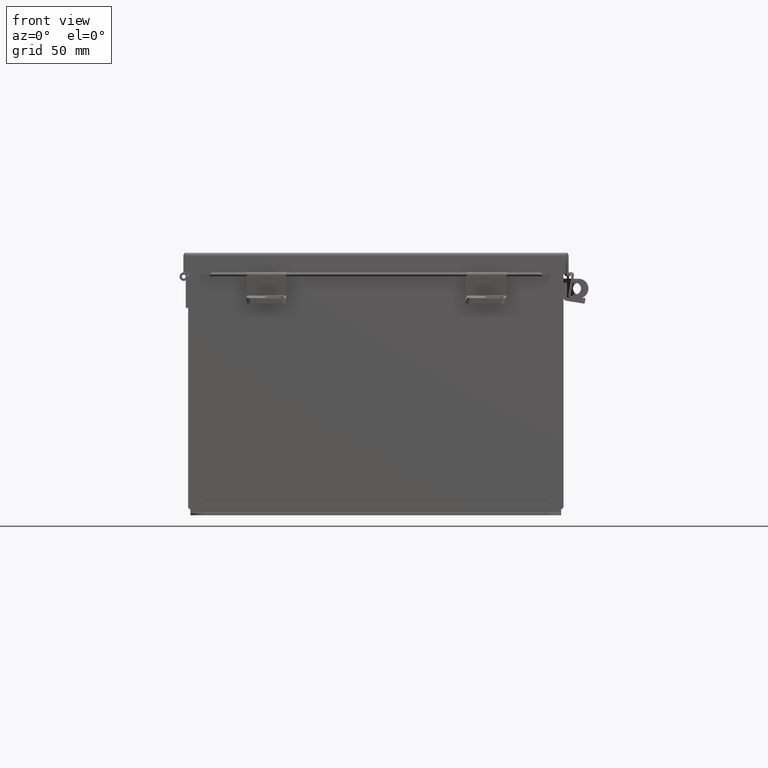
[diagram: clean part render]
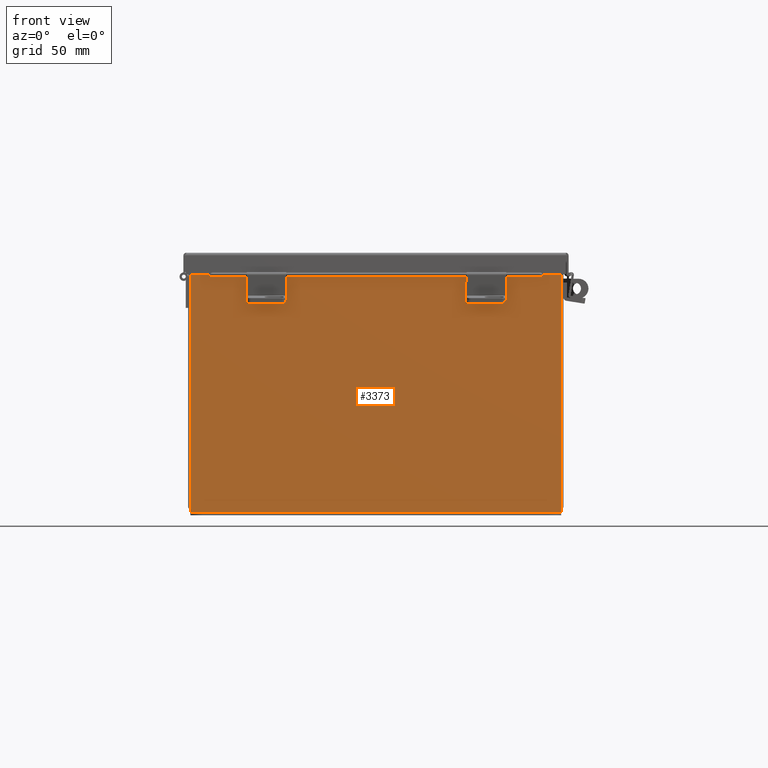
[diagram: same view with one face highlighted and labeled with its STEP entity id]
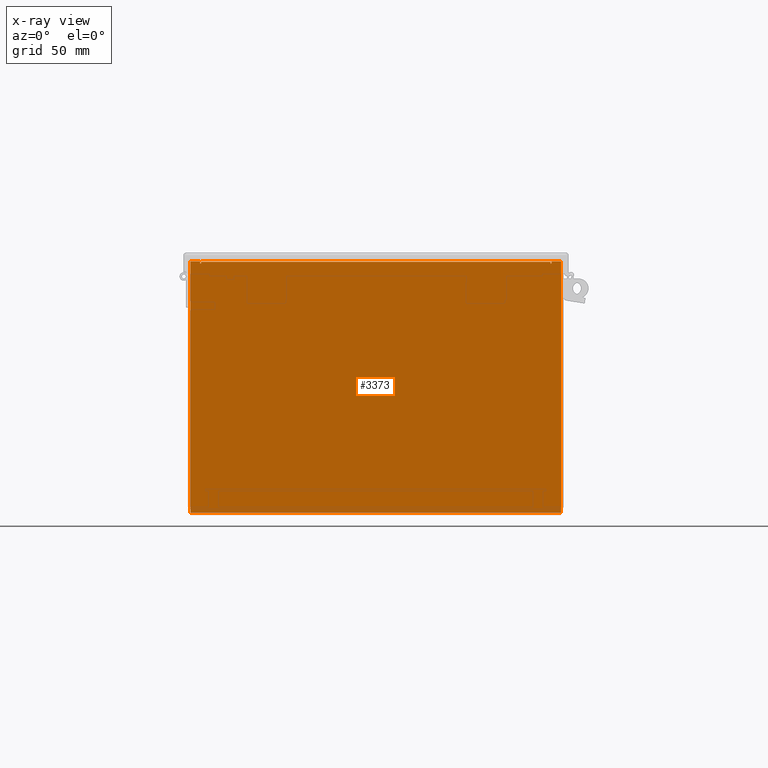
[diagram: x-ray of the same camera — body ghosted, the highlighted face saturated]
A machine part, front view. The second image highlights one B-rep face of the part: STEP entity #3373.
The next image is the same camera in x-ray: the body ghosted, the highlighted face saturated — about 0% of this face is hidden behind the body in this view.
In plain terms, the highlighted planar face has unit normal (-0, 1, -0).
Its self-contained STEP definition (entity closure, byte-faithful):
#43 = DIRECTION ( 'NONE',  ( 0.0000000000000000000, 0.0000000000000000000, 1.000000000000000000 ) ) ;
#291 = LINE ( 'NONE', #17299, #8562 ) ;
#294 = VECTOR ( 'NONE', #43, 39.37007874015748100 ) ;
#594 = VERTEX_POINT ( 'NONE', #9255 ) ;
#633 = AXIS2_PLACEMENT_3D ( 'NONE', #3280, #15033, #6050 ) ;
#923 = CARTESIAN_POINT ( 'NONE',  ( -5.619649999999991200, 0.0000000000000000000, 3.874950000000000100 ) ) ;
#1012 = VECTOR ( 'NONE', #1171, 39.37007874015748100 ) ;
#1130 = CARTESIAN_POINT ( 'NONE',  ( 5.582300000000008000, 8.741913579725642300E-015, 3.874949999999999200 ) ) ;
#1171 = DIRECTION ( 'NONE',  ( 1.000000000000000000, 4.910036603141682400E-031, -0.0000000000000000000 ) ) ;
#1301 = LINE ( 'NONE', #8790, #10483 ) ;
#1507 = LINE ( 'NONE', #11999, #1012 ) ;
#1570 = CARTESIAN_POINT ( 'NONE',  ( -5.600974999999991200, 0.0000000000000000000, 3.874950000000000100 ) ) ;
#1643 = VECTOR ( 'NONE', #16853, 39.37007874015748100 ) ;
#1828 = DIRECTION ( 'NONE',  ( 0.0000000000000000000, 0.0000000000000000000, 1.000000000000000000 ) ) ;
#2144 = EDGE_CURVE ( 'NONE', #10453, #12992, #16834, .T. ) ;
#2753 = VERTEX_POINT ( 'NONE', #6515 ) ;
#2955 = DIRECTION ( 'NONE',  ( 1.000000000000000000, 4.910036603141682400E-031, 0.0000000000000000000 ) ) ;
#3105 = CARTESIAN_POINT ( 'NONE',  ( -5.925299999999991100, 0.0000000000000000000, -4.099299999999995100 ) ) ;
#3118 = DIRECTION ( 'NONE',  ( 0.0000000000000000000, 0.0000000000000000000, -1.000000000000000000 ) ) ;
#3167 = DIRECTION ( 'NONE',  ( 1.000000000000000000, 4.910036603141682400E-031, -0.0000000000000000000 ) ) ;
#3280 = CARTESIAN_POINT ( 'NONE',  ( 0.0000000000000000000, 0.0000000000000000000, 0.0000000000000000000 ) ) ;
#3302 = EDGE_CURVE ( 'NONE', #594, #20034, #14870, .T. ) ;
#3373 = ADVANCED_FACE ( 'NONE', ( #13411 ), #5848, .F. ) ;
#4389 = EDGE_CURVE ( 'NONE', #18110, #2753, #16007, .T. ) ;
#4939 = VERTEX_POINT ( 'NONE', #18872 ) ;
#5070 = CARTESIAN_POINT ( 'NONE',  ( -5.582299999999991200, 0.0000000000000000000, 3.874950000000000100 ) ) ;
#5169 = DIRECTION ( 'NONE',  ( 4.910036603141682400E-031, 1.000000000000000000, -0.0000000000000000000 ) ) ;
#5526 = CARTESIAN_POINT ( 'NONE',  ( -5.619649999999991200, 0.0000000000000000000, 3.925300000000001300 ) ) ;
#5848 = PLANE ( 'NONE',  #633 ) ;
#6050 = DIRECTION ( 'NONE',  ( 0.0000000000000000000, 0.0000000000000000000, -1.000000000000000000 ) ) ;
#6309 = CARTESIAN_POINT ( 'NONE',  ( -5.619649999999991200, 0.0000000000000000000, 4.370956789862821100E-015 ) ) ;
#6515 = CARTESIAN_POINT ( 'NONE',  ( 5.582300000000008000, 8.741913579725642300E-015, 3.912300000000000100 ) ) ;
#6579 = VECTOR ( 'NONE', #1828, 39.37007874015748100 ) ;
#7002 = EDGE_CURVE ( 'NONE', #20034, #7203, #14717, .T. ) ;
#7203 = VERTEX_POINT ( 'NONE', #9166 ) ;
#7253 = VECTOR ( 'NONE', #9657, 39.37007874015748100 ) ;
#7971 = DIRECTION ( 'NONE',  ( 0.0000000000000000000, 0.0000000000000000000, -1.000000000000000000 ) ) ;
#8052 = CARTESIAN_POINT ( 'NONE',  ( -5.925299999999992900, 0.0000000000000000000, 3.925300000000000500 ) ) ;
#8137 = AXIS2_PLACEMENT_3D ( 'NONE', #14525, #5169, #16036 ) ;
#8359 = ORIENTED_EDGE ( 'NONE', *, *, #7002, .T. ) ;
#8562 = VECTOR ( 'NONE', #7971, 39.37007874015748100 ) ;
#8790 = CARTESIAN_POINT ( 'NONE',  ( 5.619649999999923700, 0.0000000000000000000, -1.218404205174261500E-013 ) ) ;
#8828 = EDGE_CURVE ( 'NONE', #594, #4939, #1301, .T. ) ;
#8871 = ORIENTED_EDGE ( 'NONE', *, *, #4389, .F. ) ;
#8995 = VERTEX_POINT ( 'NONE', #3105 ) ;
#9069 = VERTEX_POINT ( 'NONE', #5070 ) ;
#9166 = CARTESIAN_POINT ( 'NONE',  ( 5.925300000000008000, 8.741913579725642300E-015, -4.099299999999999500 ) ) ;
#9255 = CARTESIAN_POINT ( 'NONE',  ( 5.619650000000008900, 8.741913579725642300E-015, 3.925299999999999100 ) ) ;
#9514 = EDGE_CURVE ( 'NONE', #9069, #10453, #13635, .T. ) ;
#9616 = VECTOR ( 'NONE', #3167, 39.37007874015748100 ) ;
#9657 = DIRECTION ( 'NONE',  ( 0.0000000000000000000, 0.0000000000000000000, 1.000000000000000000 ) ) ;
#10322 = ORIENTED_EDGE ( 'NONE', *, *, #11719, .F. ) ;
#10453 = VERTEX_POINT ( 'NONE', #923 ) ;
#10483 = VECTOR ( 'NONE', #19669, 39.37007874015748100 ) ;
#10801 = CARTESIAN_POINT ( 'NONE',  ( 5.925300000000008000, 8.741913579725642300E-015, 3.925299999999998200 ) ) ;
#11297 = ORIENTED_EDGE ( 'NONE', *, *, #19545, .T. ) ;
#11719 = EDGE_CURVE ( 'NONE', #8995, #7203, #17916, .T. ) ;
#11918 = EDGE_CURVE ( 'NONE', #4939, #18110, #19125, .T. ) ;
#11999 = CARTESIAN_POINT ( 'NONE',  ( -5.582299999999992900, 2.185478394931410600E-015, 3.912299999999999200 ) ) ;
#12032 = ORIENTED_EDGE ( 'NONE', *, *, #15236, .T. ) ;
#12383 = DIRECTION ( 'NONE',  ( 4.910036603141682400E-031, 1.000000000000000000, -0.0000000000000000000 ) ) ;
#12662 = CARTESIAN_POINT ( 'NONE',  ( -5.925299999999992900, 0.0000000000000000000, 3.925300000000000500 ) ) ;
#12992 = VERTEX_POINT ( 'NONE', #5526 ) ;
#13237 = EDGE_LOOP ( 'NONE', ( #14695, #15767, #18161, #12032, #8871, #16636, #20047, #18355, #8359, #10322, #11297, #17891 ) ) ;
#13411 = FACE_OUTER_BOUND ( 'NONE', #13237, .T. ) ;
#13635 = CIRCLE ( 'NONE', #16958, 0.01867500000000003900 ) ;
#13759 = CARTESIAN_POINT ( 'NONE',  ( -5.925299999999992900, 0.0000000000000000000, 3.925300000000000500 ) ) ;
#14029 = LINE ( 'NONE', #13759, #1643 ) ;
#14213 = VECTOR ( 'NONE', #16383, 39.37007874015748100 ) ;
#14525 = CARTESIAN_POINT ( 'NONE',  ( 5.600975000000007100, 8.741913579725642300E-015, 3.874949999999999200 ) ) ;
#14695 = ORIENTED_EDGE ( 'NONE', *, *, #2144, .F. ) ;
#14717 = LINE ( 'NONE', #17798, #14213 ) ;
#14870 = LINE ( 'NONE', #8052, #18495 ) ;
#15033 = DIRECTION ( 'NONE',  ( -4.910036603141682400E-031, -1.000000000000000000, -0.0000000000000000000 ) ) ;
#15229 = CARTESIAN_POINT ( 'NONE',  ( 5.582300000000008000, 0.0000000000000000000, 0.0000000000000000000 ) ) ;
#15236 = EDGE_CURVE ( 'NONE', #19968, #2753, #1507, .T. ) ;
#15767 = ORIENTED_EDGE ( 'NONE', *, *, #9514, .F. ) ;
#16007 = LINE ( 'NONE', #15229, #7253 ) ;
#16036 = DIRECTION ( 'NONE',  ( 0.0000000000000000000, 0.0000000000000000000, -1.000000000000000000 ) ) ;
#16383 = DIRECTION ( 'NONE',  ( 0.0000000000000000000, 0.0000000000000000000, -1.000000000000000000 ) ) ;
#16551 = EDGE_CURVE ( 'NONE', #17329, #12992, #14029, .T. ) ;
#16636 = ORIENTED_EDGE ( 'NONE', *, *, #11918, .F. ) ;
#16834 = LINE ( 'NONE', #6309, #294 ) ;
#16853 = DIRECTION ( 'NONE',  ( 1.000000000000000000, 4.910036603141682400E-031, 0.0000000000000000000 ) ) ;
#16931 = CARTESIAN_POINT ( 'NONE',  ( -5.582299999999991200, 2.185478394931410600E-015, 3.912299999999999200 ) ) ;
#16958 = AXIS2_PLACEMENT_3D ( 'NONE', #1570, #12383, #3118 ) ;
#17299 = CARTESIAN_POINT ( 'NONE',  ( -5.582299999999991200, 0.0000000000000000000, 4.370956789862821100E-015 ) ) ;
#17329 = VERTEX_POINT ( 'NONE', #18883 ) ;
#17798 = CARTESIAN_POINT ( 'NONE',  ( 5.925300000000008000, 8.741913579725642300E-015, 3.925299999999998200 ) ) ;
#17891 = ORIENTED_EDGE ( 'NONE', *, *, #16551, .T. ) ;
#17916 = LINE ( 'NONE', #18646, #9616 ) ;
#18110 = VERTEX_POINT ( 'NONE', #1130 ) ;
#18161 = ORIENTED_EDGE ( 'NONE', *, *, #18924, .F. ) ;
#18355 = ORIENTED_EDGE ( 'NONE', *, *, #3302, .T. ) ;
#18495 = VECTOR ( 'NONE', #2955, 39.37007874015748100 ) ;
#18646 = CARTESIAN_POINT ( 'NONE',  ( -5.925299999999992900, 0.0000000000000000000, -4.099299999999995100 ) ) ;
#18872 = CARTESIAN_POINT ( 'NONE',  ( 5.619650000000007100, 8.741913579725642300E-015, 3.874949999999997900 ) ) ;
#18883 = CARTESIAN_POINT ( 'NONE',  ( -5.925299999999992900, 0.0000000000000000000, 3.925300000000000500 ) ) ;
#18924 = EDGE_CURVE ( 'NONE', #19968, #9069, #291, .T. ) ;
#18997 = LINE ( 'NONE', #12662, #6579 ) ;
#19125 = CIRCLE ( 'NONE', #8137, 0.01867500000000003900 ) ;
#19545 = EDGE_CURVE ( 'NONE', #8995, #17329, #18997, .T. ) ;
#19669 = DIRECTION ( 'NONE',  ( -2.170286390199955400E-014, -7.888609052210118100E-031, -1.000000000000000000 ) ) ;
#19968 = VERTEX_POINT ( 'NONE', #16931 ) ;
#20034 = VERTEX_POINT ( 'NONE', #10801 ) ;
#20047 = ORIENTED_EDGE ( 'NONE', *, *, #8828, .F. ) ;